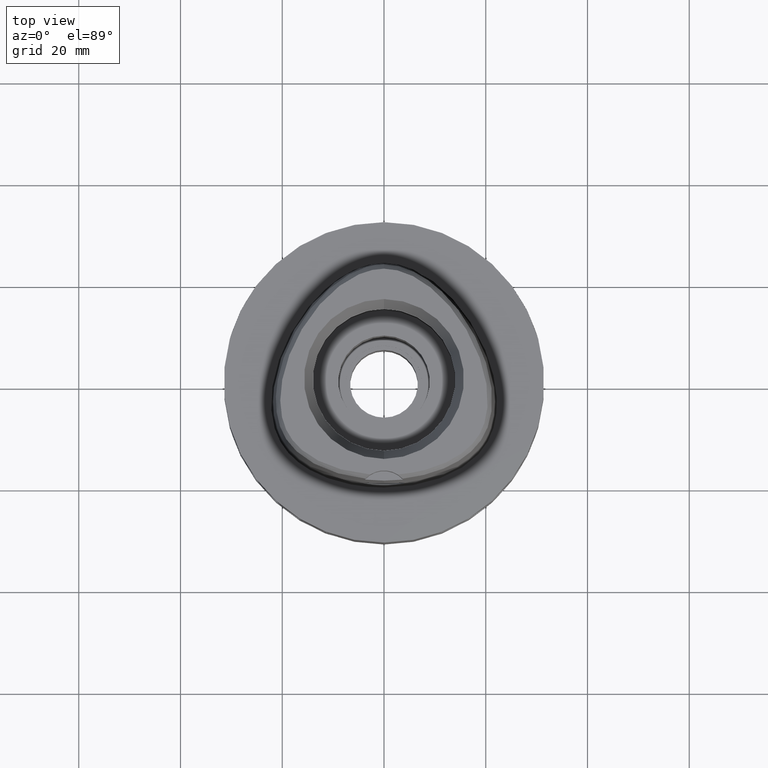
[diagram: clean part render]
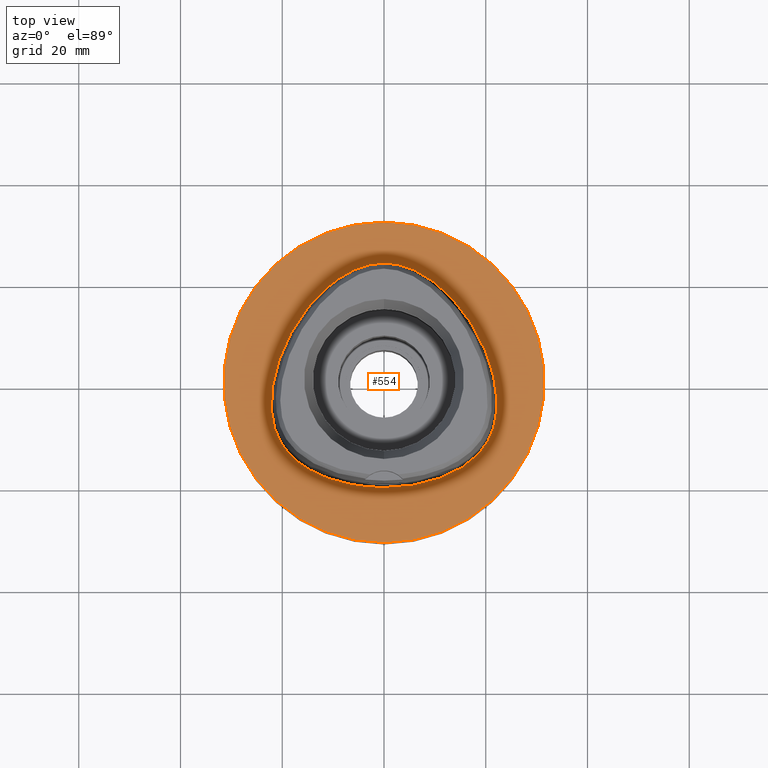
[diagram: same view with one face highlighted and labeled with its STEP entity id]
A machine part, top view. The second image highlights one B-rep face of the part: STEP entity #554.
In plain terms, the highlighted planar face has unit normal (0, 0, -1).
Its self-contained STEP definition (entity closure, byte-faithful):
#169 = DIRECTION ( 'NONE',  ( 0.0000000000000000000, 0.0000000000000000000, -1.000000000000000000 ) ) ;
#242 = CARTESIAN_POINT ( 'NONE',  ( 22.05732874194318427, -6.847636718566505465, 5.133892459372943473E-08 ) ) ;
#369 = CARTESIAN_POINT ( 'NONE',  ( 0.0000000000000000000, -31.50000000000000000, 0.0000000000000000000 ) ) ;
#382 = DIRECTION ( 'NONE',  ( 0.0000000000000000000, -1.000000000000000000, 0.0000000000000000000 ) ) ;
#450 = CARTESIAN_POINT ( 'NONE',  ( -21.55524825177849024, -8.996025388152485647, 3.459377808626325213E-07 ) ) ;
#458 = EDGE_CURVE ( 'NONE', #1422, #2124, #5161, .T. ) ;
#474 = CARTESIAN_POINT ( 'NONE',  ( -22.05732873462538990, -6.847636717514570925, 3.459377808626325213E-07 ) ) ;
#534 = CARTESIAN_POINT ( 'NONE',  ( -1.332771036187000036E-11, -20.67499999999999716, 1.592799965995999763E-13 ) ) ;
#554 = ADVANCED_FACE ( 'NONE', ( #4521, #4994 ), #2837, .F. ) ;
#585 = CARTESIAN_POINT ( 'NONE',  ( 14.67337964356189239, -17.21410156138248482, 5.133892459372943473E-08 ) ) ;
#601 = VERTEX_POINT ( 'NONE', #2509 ) ;
#800 = DIRECTION ( 'NONE',  ( 0.0000000000000000000, 0.0000000000000000000, -1.000000000000000000 ) ) ;
#874 = B_SPLINE_CURVE_WITH_KNOTS ( 'NONE', 3,
 ( #1768, #4302, #2154, #3451, #2567, #4698, #4676, #919, #2597, #946, #4221, #474, #450, #2129, #3808, #2622, #1716, #1304, #5081, #2986, #894, #4242, #534 ),
 .UNSPECIFIED., .F., .F.,
 ( 4, 1, 1, 1, 1, 1, 1, 1, 1, 1, 1, 1, 1, 1, 1, 1, 1, 1, 1, 1, 4 ),
 ( 0.0000000000000000000, 0.04166666666767999960, 0.08333333333429000789, 0.1250000000009000023, 0.1666666666676000219, 0.2500000000006999956, 0.3333333333339000282, 0.4166666666672000363, 0.5000000000004000134, 0.5416666666671000607, 0.5833333333336000459, 0.6250000000002999823, 0.6458333333335000148, 0.6666666666668999985, 0.6875000000001999512, 0.7083333333333999837, 0.7500000000001000311, 0.7916666666667000474, 0.8333333333333000637, 0.9166666666666000163, 1.000000000000000000 ),
 .UNSPECIFIED. ) ;
#890 = EDGE_CURVE ( 'NONE', #1917, #601, #4838, .T. ) ;
#894 = CARTESIAN_POINT ( 'NONE',  ( -6.341471017674845001, -20.29812499144884086, 3.459377808626325213E-07 ) ) ;
#919 = CARTESIAN_POINT ( 'NONE',  ( -18.06826687773854090, 10.43171874565434898, 3.459377808626325213E-07 ) ) ;
#946 = CARTESIAN_POINT ( 'NONE',  ( -21.97832646930871903, -0.2810937515131003983, 3.459377808626325213E-07 ) ) ;
#1039 = ORIENTED_EDGE ( 'NONE', *, *, #890, .F. ) ;
#1075 = CARTESIAN_POINT ( 'NONE',  ( 10.74572890975553108, 19.17433593651194101, 5.133892459372943473E-08 ) ) ;
#1101 = CARTESIAN_POINT ( 'NONE',  ( 20.34961798445548453, -11.74885742122440035, 5.133892459372943473E-08 ) ) ;
#1123 = ORIENTED_EDGE ( 'NONE', *, *, #4782, .F. ) ;
#1304 = CARTESIAN_POINT ( 'NONE',  ( -16.95889172056334004, -15.67838866504611417, 3.459377808626325213E-07 ) ) ;
#1422 = VERTEX_POINT ( 'NONE', #4196 ) ;
#1467 = CARTESIAN_POINT ( 'NONE',  ( 0.8548392422176173122, 23.47499999872449195, 5.133892459372943473E-08 ) ) ;
#1547 = CARTESIAN_POINT ( 'NONE',  ( -1.332771036187000036E-11, -20.67499999999999716, 1.592799965995999763E-13 ) ) ;
#1716 = CARTESIAN_POINT ( 'NONE',  ( -18.56841064512599360, -14.16937987684424272, 3.459377808626325213E-07 ) ) ;
#1768 = CARTESIAN_POINT ( 'NONE',  ( 6.589911981476000638E-11, 23.47499999998000320, 1.563934167354999746E-13 ) ) ;
#1815 = AXIS2_PLACEMENT_3D ( 'NONE', #4157, #800, #382 ) ;
#1917 = VERTEX_POINT ( 'NONE', #1547 ) ;
#2084 = AXIS2_PLACEMENT_3D ( 'NONE', #2395, #2789, #2321 ) ;
#2124 = VERTEX_POINT ( 'NONE', #369 ) ;
#2129 = CARTESIAN_POINT ( 'NONE',  ( -20.93173251419439396, -10.60431640273427334, 3.459377808626325213E-07 ) ) ;
#2154 = CARTESIAN_POINT ( 'NONE',  ( -2.564517725179087826, 23.29328124148293355, 3.459377808626325213E-07 ) ) ;
#2169 = CIRCLE ( 'NONE', #4645, 31.50000000000000000 ) ;
#2264 = CARTESIAN_POINT ( 'NONE',  ( 20.93173252094357295, -10.60431640572513423, 5.133892459372943473E-08 ) ) ;
#2292 = CARTESIAN_POINT ( 'NONE',  ( 6.589911981476000638E-11, 23.47499999998000320, 1.563934167354999746E-13 ) ) ;
#2321 = DIRECTION ( 'NONE',  ( 0.0000000000000000000, 1.000000000000000000, 0.0000000000000000000 ) ) ;
#2365 = CARTESIAN_POINT ( 'NONE',  ( 18.56841065047631645, -14.16937988192455045, 5.133892459372943473E-08 ) ) ;
#2395 = CARTESIAN_POINT ( 'NONE',  ( 0.0000000000000000000, 1.265672466918999865E-14, 0.0000000000000000000 ) ) ;
#2509 = CARTESIAN_POINT ( 'NONE',  ( 6.589911981476000638E-11, 23.47499999998000320, 1.563934167354999746E-13 ) ) ;
#2567 = CARTESIAN_POINT ( 'NONE',  ( -7.571159429969791077, 21.31457030501186267, 3.459377808626325213E-07 ) ) ;
#2597 = CARTESIAN_POINT ( 'NONE',  ( -20.74942740061855417, 4.657187497051560321, 3.459377808626325213E-07 ) ) ;
#2622 = CARTESIAN_POINT ( 'NONE',  ( -19.64947365162905513, -12.82525390115283948, 3.459377808626325213E-07 ) ) ;
#2680 = DIRECTION ( 'NONE',  ( 0.0000000000000000000, -1.000000000000000000, 0.0000000000000000000 ) ) ;
#2752 = CARTESIAN_POINT ( 'NONE',  ( 21.55524825886109141, -8.996025390257862853, 5.133892459372943473E-08 ) ) ;
#2789 = DIRECTION ( 'NONE',  ( 0.0000000000000000000, 0.0000000000000000000, -1.000000000000000000 ) ) ;
#2837 = PLANE ( 'NONE',  #1815 ) ;
#2986 = CARTESIAN_POINT ( 'NONE',  ( -11.23259756429891887, -18.89324217933711836, 3.459377808626325213E-07 ) ) ;
#3067 = EDGE_LOOP ( 'NONE', ( #1123, #1039 ) ) ;
#3149 = CARTESIAN_POINT ( 'NONE',  ( 6.341471018983529717, -20.29812499872887699, 5.133892459372944135E-08 ) ) ;
#3172 = CARTESIAN_POINT ( 'NONE',  ( 2.113823672989667557, -20.67499999870904759, 5.133892459372943473E-08 ) ) ;
#3451 = CARTESIAN_POINT ( 'NONE',  ( -5.098437014055448913, 22.52602538256833142, 3.459377808626325213E-07 ) ) ;
#3532 = CARTESIAN_POINT ( 'NONE',  ( 21.97832647659170746, -0.2810937502245363095, 5.133892459372943473E-08 ) ) ;
#3556 = CARTESIAN_POINT ( 'NONE',  ( 2.564517726692166377, 23.29328124873773476, 5.133892459372943473E-08 ) ) ;
#3588 = CARTESIAN_POINT ( 'NONE',  ( 19.64947365759156384, -12.82525390549806232, 5.133892459372943473E-08 ) ) ;
#3611 = CARTESIAN_POINT ( 'NONE',  ( 16.95889172514020871, -15.67838867086465626, 5.133892459372943473E-08 ) ) ;
#3689 = EDGE_CURVE ( 'NONE', #2124, #1422, #2169, .T. ) ;
#3808 = CARTESIAN_POINT ( 'NONE',  ( -20.34961797806598582, -11.74885741753617552, 3.459377808626325213E-07 ) ) ;
#3937 = CARTESIAN_POINT ( 'NONE',  ( 14.40795638859523642, 15.64093749916761666, 5.133892459372943473E-08 ) ) ;
#4021 = CARTESIAN_POINT ( 'NONE',  ( 11.23259756683577137, -18.89324218628103580, 5.133892459372943473E-08 ) ) ;
#4157 = CARTESIAN_POINT ( 'NONE',  ( 0.0000000000000000000, 1.224646799146999965E-14, 0.0000000000000000000 ) ) ;
#4196 = CARTESIAN_POINT ( 'NONE',  ( 0.0000000000000000000, 31.50000000000000000, 0.0000000000000000000 ) ) ;
#4221 = CARTESIAN_POINT ( 'NONE',  ( -22.24453906986831342, -4.100468750050696443, 3.459377808626325213E-07 ) ) ;
#4242 = CARTESIAN_POINT ( 'NONE',  ( -2.113823672550860344, -20.67499999135608846, 3.459377808626325213E-07 ) ) ;
#4279 = EDGE_LOOP ( 'NONE', ( #4421, #4733 ) ) ;
#4302 = CARTESIAN_POINT ( 'NONE',  ( -0.8548392416841041896, 23.47499999135873949, 3.459377808626325213E-07 ) ) ;
#4348 = CARTESIAN_POINT ( 'NONE',  ( 7.571159433700400676, 21.31457031138521074, 5.133892459372943473E-08 ) ) ;
#4383 = CARTESIAN_POINT ( 'NONE',  ( -1.332771036187000036E-11, -20.67499999999999716, 1.592799965995999763E-13 ) ) ;
#4421 = ORIENTED_EDGE ( 'NONE', *, *, #458, .F. ) ;
#4521 = FACE_OUTER_BOUND ( 'NONE', #4279, .T. ) ;
#4645 = AXIS2_PLACEMENT_3D ( 'NONE', #4777, #169, #2680 ) ;
#4676 = CARTESIAN_POINT ( 'NONE',  ( -14.40795638293354664, 15.64093749438234049, 3.459377808626325213E-07 ) ) ;
#4698 = CARTESIAN_POINT ( 'NONE',  ( -10.74572890499939959, 19.17433593084498966, 3.459377808626325213E-07 ) ) ;
#4733 = ORIENTED_EDGE ( 'NONE', *, *, #3689, .F. ) ;
#4777 = CARTESIAN_POINT ( 'NONE',  ( 0.0000000000000000000, 1.265672466918999865E-14, 0.0000000000000000000 ) ) ;
#4782 = EDGE_CURVE ( 'NONE', #601, #1917, #874, .T. ) ;
#4838 = B_SPLINE_CURVE_WITH_KNOTS ( 'NONE', 3,
 ( #4383, #3172, #3149, #4021, #585, #3611, #2365, #3588, #1101, #2264, #2752, #242, #4905, #3532, #5310, #5236, #3937, #1075, #4348, #5208, #3556, #1467, #2292 ),
 .UNSPECIFIED., .F., .F.,
 ( 4, 1, 1, 1, 1, 1, 1, 1, 1, 1, 1, 1, 1, 1, 1, 1, 1, 1, 1, 1, 4 ),
 ( 0.0000000000000000000, 0.08333333333346000515, 0.1666666666668000230, 0.2083333333334000115, 0.2500000000000000000, 0.2916666666666999919, 0.3125000000000000000, 0.3333333333333000081, 0.3541666666666999919, 0.3750000000000000000, 0.4166666666666999919, 0.4583333333332000326, 0.4999999999998999689, 0.5833333333332000326, 0.6666666666664999852, 0.7499999999998000488, 0.8333333333329999704, 0.8749999999997000177, 0.9166666666664000651, 0.9583333333329999704, 1.000000000000000000 ),
 .UNSPECIFIED. ) ;
#4905 = CARTESIAN_POINT ( 'NONE',  ( 22.24453907726493895, -4.100468750007731700, 5.133892459372943473E-08 ) ) ;
#4994 = FACE_BOUND ( 'NONE', #3067, .T. ) ;
#5081 = CARTESIAN_POINT ( 'NONE',  ( -14.67337963990355121, -17.21410155496724670, 3.459377808626325213E-07 ) ) ;
#5161 = CIRCLE ( 'NONE', #2084, 31.50000000000000000 ) ;
#5208 = CARTESIAN_POINT ( 'NONE',  ( 5.098437016805039690, 22.52602538943070343, 5.133892459372943473E-08 ) ) ;
#5236 = CARTESIAN_POINT ( 'NONE',  ( 18.06826688415234727, 10.43171874935659282, 5.133892459372943473E-08 ) ) ;
#5310 = CARTESIAN_POINT ( 'NONE',  ( 20.74942740758246984, 4.657187499561644906, 5.133892459372943473E-08 ) ) ;